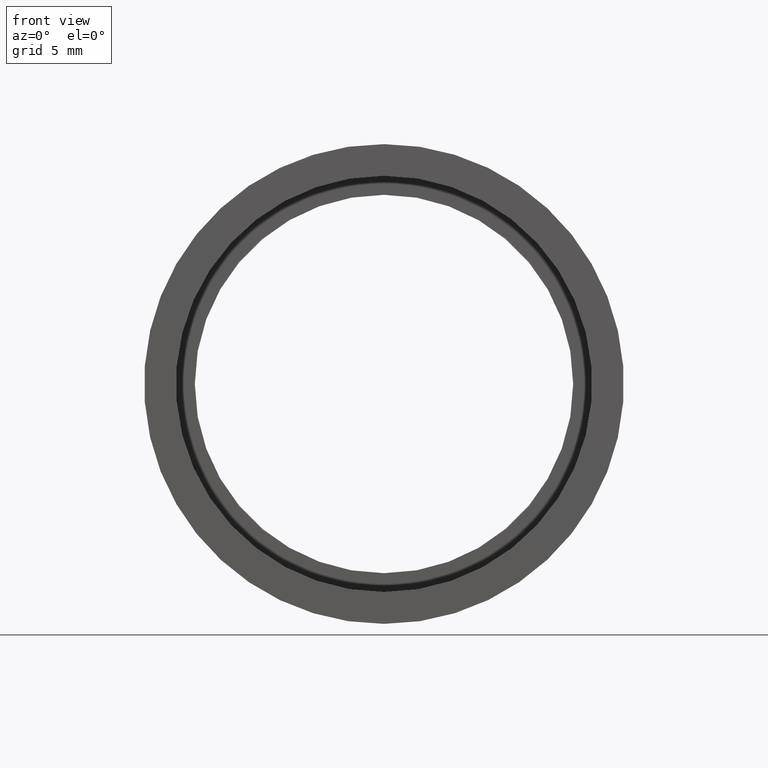
[diagram: clean part render]
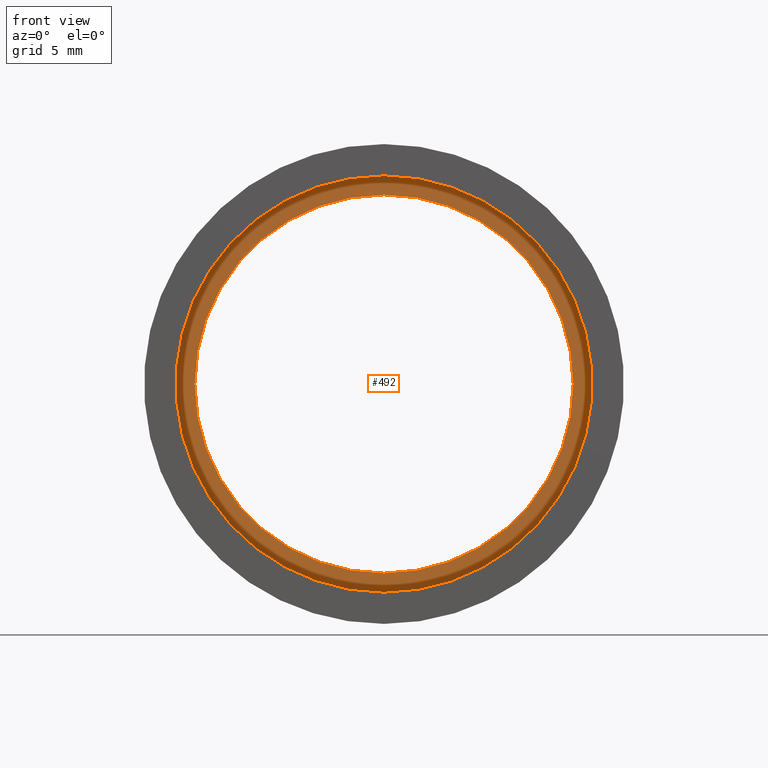
[diagram: same view with one face highlighted and labeled with its STEP entity id]
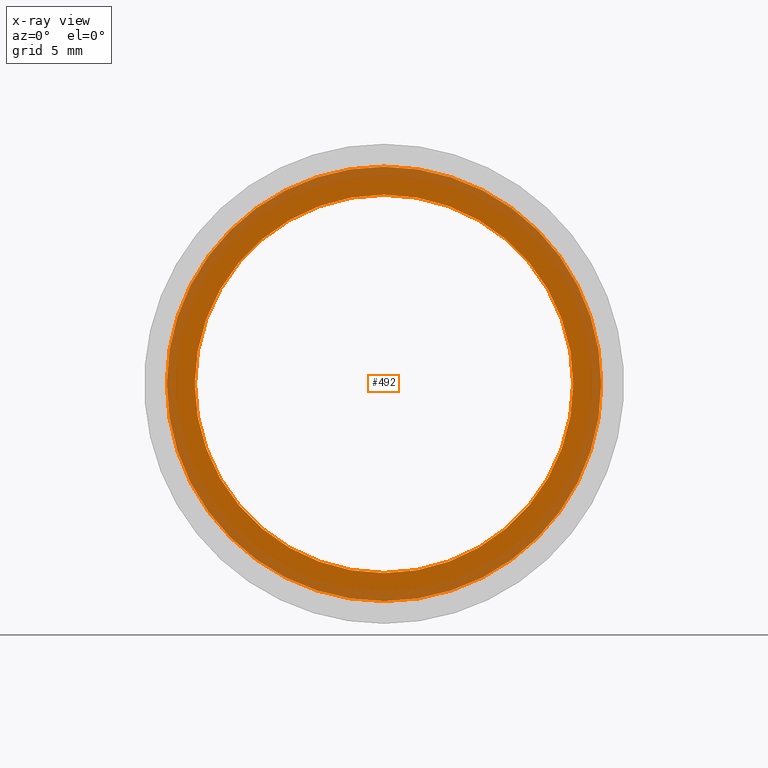
[diagram: x-ray of the same camera — body ghosted, the highlighted face saturated]
A machine part, front view. The second image highlights one B-rep face of the part: STEP entity #492.
The next image is the same camera in x-ray: the body ghosted, the highlighted face saturated — about 34% of this face is hidden behind the body in this view.
In plain terms, the highlighted planar face has unit normal (-0, 1, 0).
Its self-contained STEP definition (entity closure, byte-faithful):
#15 = EDGE_CURVE ( 'NONE', #108, #325, #399, .T. ) ;
#30 = AXIS2_PLACEMENT_3D ( 'NONE', #407, #594, #112 ) ;
#32 = EDGE_CURVE ( 'NONE', #325, #108, #267, .T. ) ;
#49 = ORIENTED_EDGE ( 'NONE', *, *, #156, .T. ) ;
#86 = DIRECTION ( 'NONE',  ( 0.0000000000000000000, 0.0000000000000000000, 1.000000000000000000 ) ) ;
#95 = CARTESIAN_POINT ( 'NONE',  ( 0.0000000000000000000, 5.499999999999976900, 0.0000000000000000000 ) ) ;
#106 = DIRECTION ( 'NONE',  ( 0.0000000000000000000, 0.0000000000000000000, 1.000000000000000000 ) ) ;
#107 = VERTEX_POINT ( 'NONE', #240 ) ;
#108 = VERTEX_POINT ( 'NONE', #619 ) ;
#112 = DIRECTION ( 'NONE',  ( 0.0000000000000000000, 0.0000000000000000000, 1.000000000000000000 ) ) ;
#122 = AXIS2_PLACEMENT_3D ( 'NONE', #427, #180, #185 ) ;
#156 = EDGE_CURVE ( 'NONE', #454, #107, #346, .T. ) ;
#180 = DIRECTION ( 'NONE',  ( -0.0000000000000000000, 1.000000000000000000, -0.0000000000000000000 ) ) ;
#185 = DIRECTION ( 'NONE',  ( 0.0000000000000000000, 0.0000000000000000000, 1.000000000000000000 ) ) ;
#189 = ORIENTED_EDGE ( 'NONE', *, *, #32, .F. ) ;
#203 = ORIENTED_EDGE ( 'NONE', *, *, #15, .F. ) ;
#220 = CIRCLE ( 'NONE', #30, 12.50000000000002000 ) ;
#228 = ORIENTED_EDGE ( 'NONE', *, *, #300, .T. ) ;
#237 = DIRECTION ( 'NONE',  ( -0.0000000000000000000, 1.000000000000000000, -0.0000000000000000000 ) ) ;
#240 = CARTESIAN_POINT ( 'NONE',  ( 0.0000000000000000000, 5.499999999999976900, 12.50000000000002000 ) ) ;
#249 = AXIS2_PLACEMENT_3D ( 'NONE', #95, #237, #86 ) ;
#267 = CIRCLE ( 'NONE', #249, 14.35000000000001900 ) ;
#300 = EDGE_CURVE ( 'NONE', #107, #454, #220, .T. ) ;
#325 = VERTEX_POINT ( 'NONE', #499 ) ;
#346 = CIRCLE ( 'NONE', #401, 12.50000000000002000 ) ;
#389 = CARTESIAN_POINT ( 'NONE',  ( 12.50000000000002000, 5.499999999999984000, 0.0000000000000000000 ) ) ;
#399 = CIRCLE ( 'NONE', #122, 14.35000000000001900 ) ;
#401 = AXIS2_PLACEMENT_3D ( 'NONE', #588, #540, #106 ) ;
#403 = FACE_OUTER_BOUND ( 'NONE', #447, .T. ) ;
#407 = CARTESIAN_POINT ( 'NONE',  ( 0.0000000000000000000, 5.499999999999976900, 0.0000000000000000000 ) ) ;
#427 = CARTESIAN_POINT ( 'NONE',  ( 0.0000000000000000000, 5.499999999999976900, 0.0000000000000000000 ) ) ;
#429 = DIRECTION ( 'NONE',  ( 0.0000000000000000000, 0.0000000000000000000, 1.000000000000000000 ) ) ;
#437 = DIRECTION ( 'NONE',  ( -0.0000000000000000000, 1.000000000000000000, 0.0000000000000000000 ) ) ;
#447 = EDGE_LOOP ( 'NONE', ( #203, #189 ) ) ;
#454 = VERTEX_POINT ( 'NONE', #610 ) ;
#455 = FACE_BOUND ( 'NONE', #587, .T. ) ;
#474 = PLANE ( 'NONE',  #541 ) ;
#492 = ADVANCED_FACE ( 'NONE', ( #403, #455 ), #474, .F. ) ;
#499 = CARTESIAN_POINT ( 'NONE',  ( 1.757368156776454300E-015, 5.499999999999976900, -14.35000000000001900 ) ) ;
#540 = DIRECTION ( 'NONE',  ( -0.0000000000000000000, 1.000000000000000000, -0.0000000000000000000 ) ) ;
#541 = AXIS2_PLACEMENT_3D ( 'NONE', #389, #437, #429 ) ;
#587 = EDGE_LOOP ( 'NONE', ( #228, #49 ) ) ;
#588 = CARTESIAN_POINT ( 'NONE',  ( 0.0000000000000000000, 5.499999999999976900, 0.0000000000000000000 ) ) ;
#594 = DIRECTION ( 'NONE',  ( -0.0000000000000000000, 1.000000000000000000, -0.0000000000000000000 ) ) ;
#610 = CARTESIAN_POINT ( 'NONE',  ( 1.530808498934193900E-015, 5.499999999999976900, -12.50000000000002000 ) ) ;
#619 = CARTESIAN_POINT ( 'NONE',  ( 0.0000000000000000000, 5.499999999999976900, 14.35000000000001900 ) ) ;